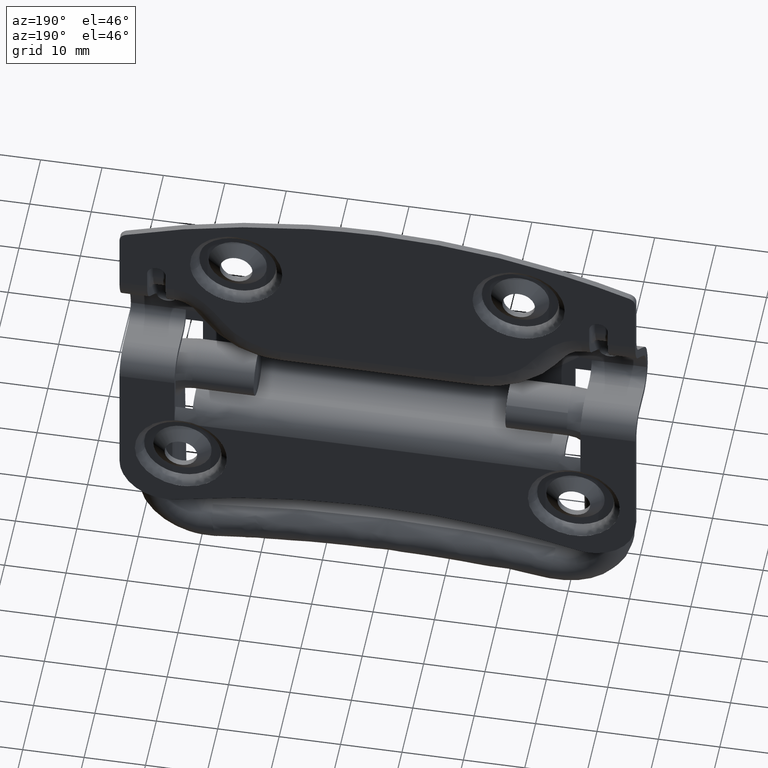
[diagram: clean part render]
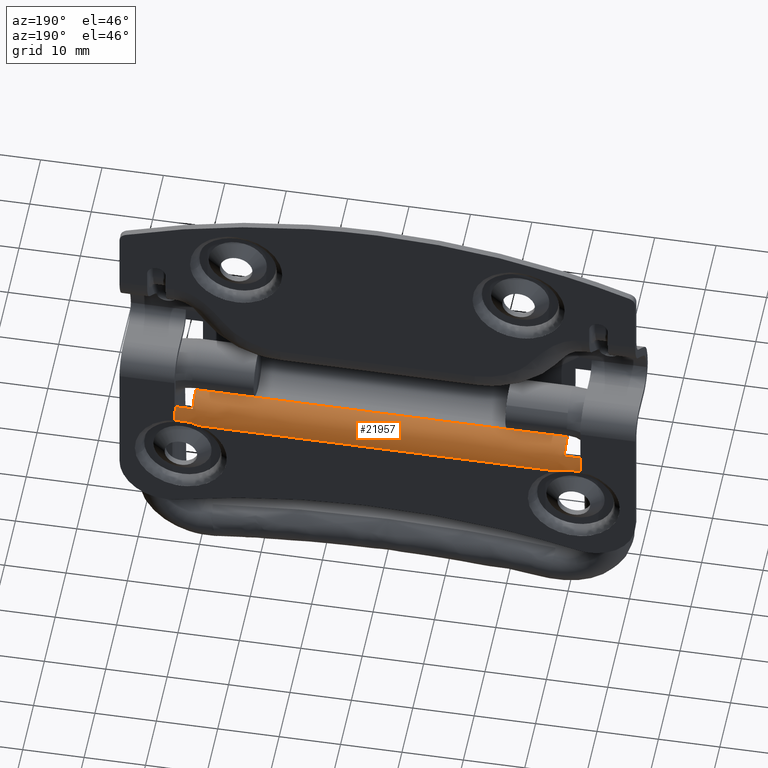
[diagram: same view with one face highlighted and labeled with its STEP entity id]
A machine part, auxiliary view. The second image highlights one B-rep face of the part: STEP entity #21957.
In plain terms, the highlighted face is a freeform B-spline surface patch.
Its self-contained STEP definition (entity closure, byte-faithful):
#7036=CARTESIAN_POINT('',(-33.048946506377312,5.906784877310770,-7.618260141626931));
#7037=VERTEX_POINT('',#7036);
#7043=CARTESIAN_POINT('',(-30.318813533841801,5.914919945775150,-7.690854217760660));
#7044=VERTEX_POINT('',#7043);
#7045=CARTESIAN_POINT('',(-33.048946506377312,5.906784877310770,-7.618260141626931));
#7046=CARTESIAN_POINT('',(-32.592484547297147,5.901905832247375,-7.578043153305856));
#7047=CARTESIAN_POINT('',(-32.136747337691830,5.899870402981132,-7.564193395329371));
#7048=CARTESIAN_POINT('',(-31.226707017670559,5.903077945637793,-7.588483410861237));
#7049=CARTESIAN_POINT('',(-30.772403784997699,5.908314946215486,-7.626619350555399));
#7050=CARTESIAN_POINT('',(-30.318813533841801,5.914919945775145,-7.690854217760613));
#7051=B_SPLINE_CURVE_WITH_KNOTS('',3,(#7045,#7046,#7047,#7048,#7049,#7050),.UNSPECIFIED.,.F.,.U.,(4,2,4),(0.0,0.500000000000000,1.0),.UNSPECIFIED.);
#7052=EDGE_CURVE('',#7037,#7044,#7051,.T.);
#7574=CARTESIAN_POINT('',(30.318813533859402,5.914919945774890,-7.690854217758160));
#7575=VERTEX_POINT('',#7574);
#7592=CARTESIAN_POINT('',(33.049053493622750,5.906786020926610,-7.618269568316090));
#7593=VERTEX_POINT('',#7592);
#7594=CARTESIAN_POINT('',(30.318813533859402,5.914919945774889,-7.690854217758118));
#7595=CARTESIAN_POINT('',(30.772421740282560,5.908314684757851,-7.626616807830930));
#7596=CARTESIAN_POINT('',(31.226742867049261,5.903077553168717,-7.588480404978572));
#7597=CARTESIAN_POINT('',(32.136818850348632,5.899870417071660,-7.564193535838434));
#7598=CARTESIAN_POINT('',(32.592573829121122,5.901906384090076,-7.578046903466652));
#7599=CARTESIAN_POINT('',(33.049053493622750,5.906786020926610,-7.618269568316090));
#7600=B_SPLINE_CURVE_WITH_KNOTS('',3,(#7594,#7595,#7596,#7597,#7598,#7599),.UNSPECIFIED.,.F.,.U.,(4,2,4),(0.0,0.500000000000002,1.0),.UNSPECIFIED.);
#7601=EDGE_CURVE('',#7575,#7593,#7600,.T.);
#13945=CARTESIAN_POINT('',(33.049053493622750,4.935900000000000,-5.454248688935310));
#13946=VERTEX_POINT('',#13945);
#13947=CARTESIAN_POINT('',(33.049053493622750,5.906786020926610,-7.618269568316090));
#13948=CARTESIAN_POINT('',(33.049053493622871,5.849769246541329,-7.145037704331041));
#13949=CARTESIAN_POINT('',(33.049053493622523,5.608533299897497,-6.366065797863189));
#13950=CARTESIAN_POINT('',(33.049053493622949,5.151626432443266,-5.698777832591456));
#13951=CARTESIAN_POINT('',(33.049053493622750,4.935900000000000,-5.454248688935310));
#13952=B_SPLINE_CURVE_WITH_KNOTS('',3,(#13947,#13948,#13949,#13950,#13951),.UNSPECIFIED.,.F.,.U.,(4,1,4),(0.000000046642368,1.429787489005250,2.408069894288510),.UNSPECIFIED.);
#13953=EDGE_CURVE('',#7593,#13946,#13952,.T.);
#13970=CARTESIAN_POINT('',(-33.048946506377263,4.935900000000000,-5.454248688935310));
#13971=VERTEX_POINT('',#13970);
#13977=CARTESIAN_POINT('',(-33.048946506377312,5.906784877310770,-7.618260141626931));
#13978=CARTESIAN_POINT('',(-33.048946506377291,5.849767433050367,-7.145031081421609));
#13979=CARTESIAN_POINT('',(-33.048946506377249,5.608530736383846,-6.366061684338798));
#13980=CARTESIAN_POINT('',(-33.048946506377241,5.151625728167280,-5.698776469122096));
#13981=CARTESIAN_POINT('',(-33.048946506377263,4.935900000000000,-5.454248688935310));
#13982=B_SPLINE_CURVE_WITH_KNOTS('',3,(#13977,#13978,#13979,#13980,#13981),.UNSPECIFIED.,.F.,.U.,(4,1,4),(0.000000046641631,1.429781850670579,2.408060398062825),.UNSPECIFIED.);
#13983=EDGE_CURVE('',#7037,#13971,#13982,.T.);
#21398=CARTESIAN_POINT('',(-30.249893012754502,1.935900000000090,-4.100000000000001));
#21399=VERTEX_POINT('',#21398);
#21406=CARTESIAN_POINT('',(30.250000000000000,1.935900000000090,-4.100000000000001));
#21407=VERTEX_POINT('',#21406);
#21413=CARTESIAN_POINT('',(30.250000000000000,1.935900000000090,-4.100000000000001));
#21414=CARTESIAN_POINT('',(-30.249893012754502,1.935900000000090,-4.100000000000001));
#21415=QUASI_UNIFORM_CURVE('',1,(#21413,#21414),.UNSPECIFIED.,.F.,.U.);
#21416=EDGE_CURVE('',#21407,#21399,#21415,.T.);
#21816=CARTESIAN_POINT('',(30.250000000000000,4.935900000000000,-5.454248688935310));
#21817=VERTEX_POINT('',#21816);
#21823=CARTESIAN_POINT('',(30.250000000000000,4.935900000000000,-5.454248688935310));
#21824=CARTESIAN_POINT('',(30.249999999999950,4.585702605469757,-5.056217596612087));
#21825=CARTESIAN_POINT('',(30.250000000000110,3.924989950695153,-4.555960667939030));
#21826=CARTESIAN_POINT('',(30.249999999999840,2.854589952580394,-4.172042219938060));
#21827=CARTESIAN_POINT('',(30.250000000000131,2.253931715582271,-4.099926596949223));
#21828=CARTESIAN_POINT('',(30.250000000000000,1.935900000000090,-4.100000000000001));
#21829=B_SPLINE_CURVE_WITH_KNOTS('',3,(#21823,#21824,#21825,#21826,#21827,#21828),.UNSPECIFIED.,.F.,.U.,(4,1,1,4),(0.000000035643639,1.590163732983070,2.438249750972423,3.392347561606310),.UNSPECIFIED.);
#21830=EDGE_CURVE('',#21817,#21407,#21829,.T.);
#21848=CARTESIAN_POINT('',(-30.249893012754601,4.935900000000000,-5.454248688935310));
#21849=VERTEX_POINT('',#21848);
#21881=CARTESIAN_POINT('',(-30.249893012754502,1.935900000000090,-4.100000000000001));
#21882=CARTESIAN_POINT('',(-30.249893012754530,2.466056510895647,-4.099378031381105));
#21883=CARTESIAN_POINT('',(-30.249893012754431,3.278270120114005,-4.264019729163894));
#21884=CARTESIAN_POINT('',(-30.249893012754612,4.274212513356784,-4.812882170169515));
#21885=CARTESIAN_POINT('',(-30.249893012754491,4.725597781275474,-5.215678856643531));
#21886=CARTESIAN_POINT('',(-30.249893012754601,4.935900000000000,-5.454248688935310));
#21887=B_SPLINE_CURVE_WITH_KNOTS('',3,(#21881,#21882,#21883,#21884,#21885,#21886),.UNSPECIFIED.,.F.,.U.,(4,1,1,4),(0.000000035643588,1.590163732983064,2.438249750972420,3.392347561606310),.UNSPECIFIED.);
#21888=EDGE_CURVE('',#21399,#21849,#21887,.T.);
#21893=CARTESIAN_POINT('',(34.701503493622752,5.934529299902318,-8.204707793231497));
#21894=CARTESIAN_POINT('',(-34.742707756377300,5.934529299902318,-8.204707793231497));
#21895=CARTESIAN_POINT('',(34.701503493622752,6.048797804784055,-3.840969645623528));
#21896=CARTESIAN_POINT('',(-34.742707756377300,6.048797804784055,-3.840969645623528));
#21897=CARTESIAN_POINT('',(34.701503493622752,1.691705841860668,-4.107460806312531));
#21898=CARTESIAN_POINT('',(-34.742707756377300,1.691705841860668,-4.107460806312531));
#21906=(BOUNDED_SURFACE()B_SPLINE_SURFACE(1,2,((#21893,#21895,#21897),(#21894,#21896,#21898)),.UNSPECIFIED.,.F.,.F.,.U.)B_SPLINE_SURFACE_WITH_KNOTS((2,2),(3,3),(0.0,69.444211250000052),(0.0,7.040168494269333),.UNSPECIFIED.)GEOMETRIC_REPRESENTATION_ITEM()RATIONAL_B_SPLINE_SURFACE(((1.0,0.675590207615660,1.0),(1.0,0.675590207615660,1.0)))REPRESENTATION_ITEM('')SURFACE());
#21907=CARTESIAN_POINT('',(-29.060612308660449,5.935900000000000,-8.100000000000000));
#21908=VERTEX_POINT('',#21907);
#21909=CARTESIAN_POINT('',(-30.318813533841801,5.914919945775150,-7.690854217760660));
#21910=CARTESIAN_POINT('',(-30.211558078454640,5.917456654570430,-7.715524189519471));
#21911=CARTESIAN_POINT('',(-30.104616133163091,5.920011944042606,-7.742606445107149));
#21912=CARTESIAN_POINT('',(-29.891365322456139,5.924869738624544,-7.801673735518413));
#21913=CARTESIAN_POINT('',(-29.784793522651231,5.927176782098918,-7.833750068163711));
#21914=CARTESIAN_POINT('',(-29.468689577669920,5.933151417179605,-7.936602882668325));
#21915=CARTESIAN_POINT('',(-29.262446918863709,5.935900000000086,-8.014018816098766));
#21916=CARTESIAN_POINT('',(-29.060612308660449,5.935900000000000,-8.100000000000000));
#21917=B_SPLINE_CURVE_WITH_KNOTS('',3,(#21909,#21910,#21911,#21912,#21913,#21914,#21915,#21916),.UNSPECIFIED.,.F.,.U.,(4,2,2,4),(0.0,0.250000000000002,0.500000000000003,1.0),.UNSPECIFIED.);
#21918=EDGE_CURVE('',#7044,#21908,#21917,.T.);
#21919=ORIENTED_EDGE('',*,*,#21918,.F.);
#21920=ORIENTED_EDGE('',*,*,#7052,.F.);
#21921=ORIENTED_EDGE('',*,*,#13983,.T.);
#21922=CARTESIAN_POINT('',(-30.249893012754601,4.935900000000000,-5.454248688935310));
#21923=CARTESIAN_POINT('',(-33.048946506377263,4.935900000000000,-5.454248688935310));
#21924=QUASI_UNIFORM_CURVE('',1,(#21922,#21923),.UNSPECIFIED.,.F.,.U.);
#21925=EDGE_CURVE('',#21849,#13971,#21924,.T.);
#21926=ORIENTED_EDGE('',*,*,#21925,.F.);
#21927=ORIENTED_EDGE('',*,*,#21888,.F.);
#21928=ORIENTED_EDGE('',*,*,#21416,.F.);
#21929=ORIENTED_EDGE('',*,*,#21830,.F.);
#21930=CARTESIAN_POINT('',(33.049053493622750,4.935900000000000,-5.454248688935310));
#21931=CARTESIAN_POINT('',(30.250000000000000,4.935900000000000,-5.454248688935310));
#21932=QUASI_UNIFORM_CURVE('',1,(#21930,#21931),.UNSPECIFIED.,.F.,.U.);
#21933=EDGE_CURVE('',#13946,#21817,#21932,.T.);
#21934=ORIENTED_EDGE('',*,*,#21933,.F.);
#21935=ORIENTED_EDGE('',*,*,#13953,.F.);
#21936=ORIENTED_EDGE('',*,*,#7601,.F.);
#21937=CARTESIAN_POINT('',(29.060612308660399,5.935900000000000,-8.100000000000000));
#21938=VERTEX_POINT('',#21937);
#21939=CARTESIAN_POINT('',(29.060612308660399,5.935900000000000,-8.100000000000000));
#21940=CARTESIAN_POINT('',(29.264252140106230,5.935900000000089,-8.013249795069781));
#21941=CARTESIAN_POINT('',(29.470930858284770,5.933113506789831,-7.935834343544163));
#21942=CARTESIAN_POINT('',(29.785490227100059,5.927161368568954,-7.833543187035363));
#21943=CARTESIAN_POINT('',(29.891101307646970,5.924875360907969,-7.801755050457436));
#21944=CARTESIAN_POINT('',(30.103849404991699,5.920029799906195,-7.742810670151076));
#21945=CARTESIAN_POINT('',(30.211161552694531,5.917466032838226,-7.715615394943367));
#21946=CARTESIAN_POINT('',(30.318813533859402,5.914919945774890,-7.690854217758160));
#21947=B_SPLINE_CURVE_WITH_KNOTS('',3,(#21939,#21940,#21941,#21942,#21943,#21944,#21945,#21946),.UNSPECIFIED.,.F.,.U.,(4,2,2,4),(0.0,0.500000000000001,0.750000000000000,1.0),.UNSPECIFIED.);
#21948=EDGE_CURVE('',#21938,#7575,#21947,.T.);
#21949=ORIENTED_EDGE('',*,*,#21948,.F.);
#21950=CARTESIAN_POINT('',(29.060612308660399,5.935900000000000,-8.100000000000000));
#21951=CARTESIAN_POINT('',(-29.060612308660449,5.935900000000000,-8.100000000000000));
#21952=QUASI_UNIFORM_CURVE('',1,(#21950,#21951),.UNSPECIFIED.,.F.,.U.);
#21953=EDGE_CURVE('',#21938,#21908,#21952,.T.);
#21954=ORIENTED_EDGE('',*,*,#21953,.T.);
#21955=EDGE_LOOP('',(#21919,#21920,#21921,#21926,#21927,#21928,#21929,#21934,#21935,#21936,#21949,#21954));
#21956=FACE_OUTER_BOUND('',#21955,.T.);
#21957=ADVANCED_FACE('',(#21956),#21906,.T.);